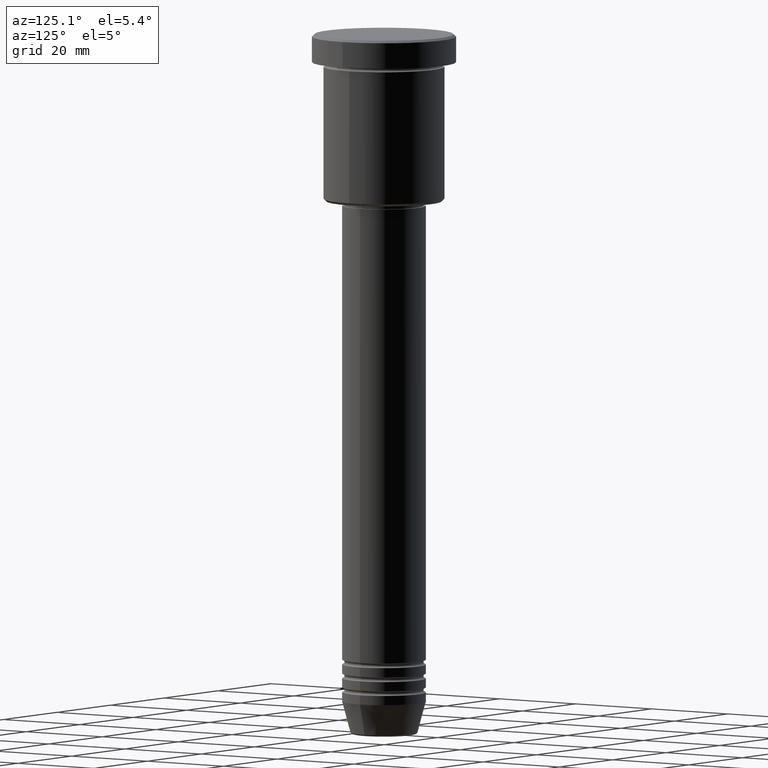
[diagram: clean part render]
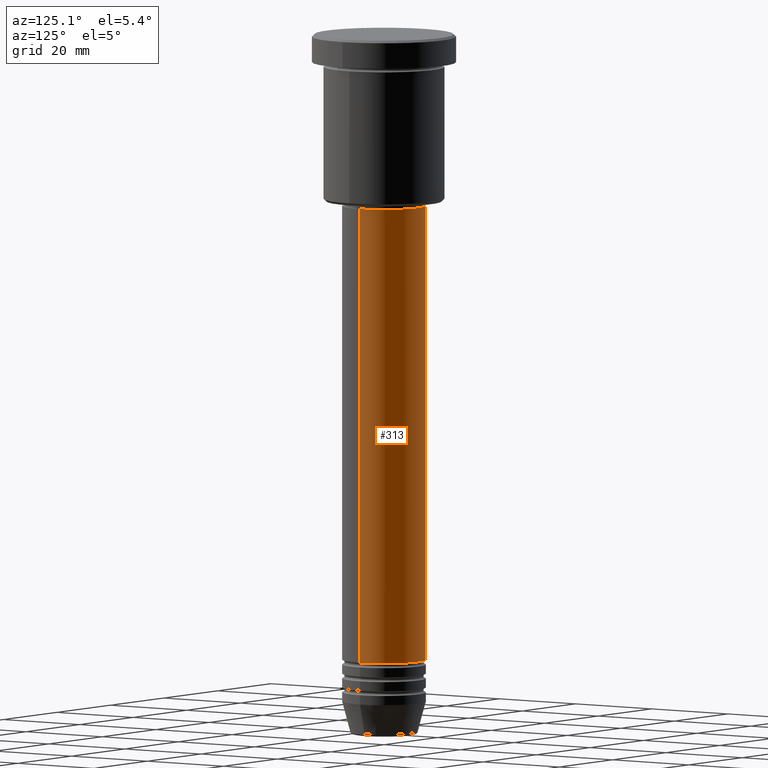
[diagram: same view with one face highlighted and labeled with its STEP entity id]
A machine part, auxiliary view. The second image highlights one B-rep face of the part: STEP entity #313.
In plain terms, the highlighted cylindrical surface (partial cylindrical patch) has radius 9 mm, axis along (-0, -0, 1).
Its self-contained STEP definition (entity closure, byte-faithful):
#65 = ORIENTED_EDGE ( 'NONE', *, *, #742, .F. ) ;
#111 = DIRECTION ( 'NONE',  ( 1.000000000000000000, 0.000000000000000000, 0.000000000000000000 ) ) ;
#127 = DIRECTION ( 'NONE',  ( -0.000000000000000000, -0.000000000000000000, 1.000000000000000000 ) ) ;
#156 = CARTESIAN_POINT ( 'NONE',  ( 9.000000000000000000, 0.000000000000000000, -37.00000000000001421 ) ) ;
#159 = DIRECTION ( 'NONE',  ( -0.000000000000000000, -0.000000000000000000, 1.000000000000000000 ) ) ;
#173 = AXIS2_PLACEMENT_3D ( 'NONE', #886, #874, #785 ) ;
#199 = VERTEX_POINT ( 'NONE', #321 ) ;
#208 = LINE ( 'NONE', #939, #1043 ) ;
#232 = EDGE_LOOP ( 'NONE', ( #478, #448, #237, #65 ) ) ;
#237 = ORIENTED_EDGE ( 'NONE', *, *, #950, .F. ) ;
#246 = CARTESIAN_POINT ( 'NONE',  ( 9.000000000000000000, 0.000000000000000000, 0.000000000000000000 ) ) ;
#275 = VERTEX_POINT ( 'NONE', #156 ) ;
#295 = AXIS2_PLACEMENT_3D ( 'NONE', #1090, #653, #111 ) ;
#299 = CIRCLE ( 'NONE', #320, 9.000000000000000000 ) ;
#313 = ADVANCED_FACE ( 'NONE', ( #704 ), #900, .T. ) ;
#320 = AXIS2_PLACEMENT_3D ( 'NONE', #397, #159, #668 ) ;
#321 = CARTESIAN_POINT ( 'NONE',  ( -9.000000000000000000, 1.102182119232617714E-15, -37.00000000000001421 ) ) ;
#348 = CARTESIAN_POINT ( 'NONE',  ( -9.000000000000000000, 1.102182119232617714E-15, -134.9999999999999716 ) ) ;
#397 = CARTESIAN_POINT ( 'NONE',  ( 0.000000000000000000, 0.000000000000000000, -37.00000000000001421 ) ) ;
#448 = ORIENTED_EDGE ( 'NONE', *, *, #670, .T. ) ;
#461 = EDGE_CURVE ( 'NONE', #1112, #808, #793, .T. ) ;
#478 = ORIENTED_EDGE ( 'NONE', *, *, #461, .T. ) ;
#566 = VECTOR ( 'NONE', #602, 1000.000000000000000 ) ;
#602 = DIRECTION ( 'NONE',  ( -0.000000000000000000, -0.000000000000000000, 1.000000000000000000 ) ) ;
#653 = DIRECTION ( 'NONE',  ( -0.000000000000000000, -0.000000000000000000, 1.000000000000000000 ) ) ;
#668 = DIRECTION ( 'NONE',  ( 1.000000000000000000, 0.000000000000000000, 0.000000000000000000 ) ) ;
#670 = EDGE_CURVE ( 'NONE', #808, #199, #208, .T. ) ;
#695 = LINE ( 'NONE', #246, #566 ) ;
#704 = FACE_OUTER_BOUND ( 'NONE', #232, .T. ) ;
#742 = EDGE_CURVE ( 'NONE', #1112, #275, #695, .T. ) ;
#785 = DIRECTION ( 'NONE',  ( 1.000000000000000000, 0.000000000000000000, 0.000000000000000000 ) ) ;
#793 = CIRCLE ( 'NONE', #295, 9.000000000000000000 ) ;
#808 = VERTEX_POINT ( 'NONE', #348 ) ;
#824 = CARTESIAN_POINT ( 'NONE',  ( 9.000000000000000000, 0.000000000000000000, -134.9999999999999716 ) ) ;
#874 = DIRECTION ( 'NONE',  ( -0.000000000000000000, -0.000000000000000000, 1.000000000000000000 ) ) ;
#886 = CARTESIAN_POINT ( 'NONE',  ( 0.000000000000000000, 0.000000000000000000, 0.000000000000000000 ) ) ;
#900 = CYLINDRICAL_SURFACE ( 'NONE', #173, 9.000000000000000000 ) ;
#939 = CARTESIAN_POINT ( 'NONE',  ( -9.000000000000000000, 1.102182119232617714E-15, 0.000000000000000000 ) ) ;
#950 = EDGE_CURVE ( 'NONE', #275, #199, #299, .T. ) ;
#1043 = VECTOR ( 'NONE', #127, 1000.000000000000000 ) ;
#1090 = CARTESIAN_POINT ( 'NONE',  ( 0.000000000000000000, 0.000000000000000000, -134.9999999999999716 ) ) ;
#1112 = VERTEX_POINT ( 'NONE', #824 ) ;